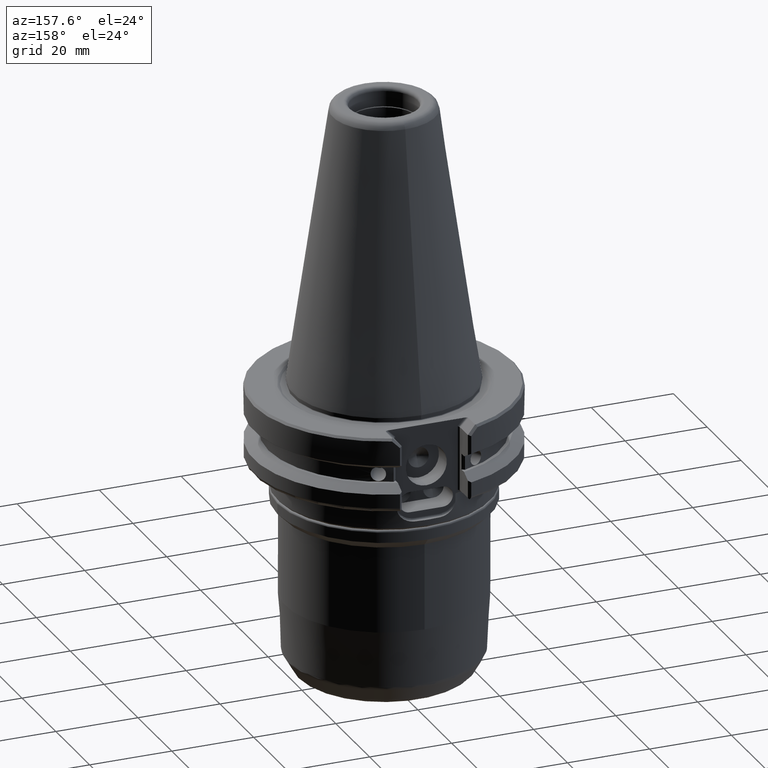
[diagram: clean part render]
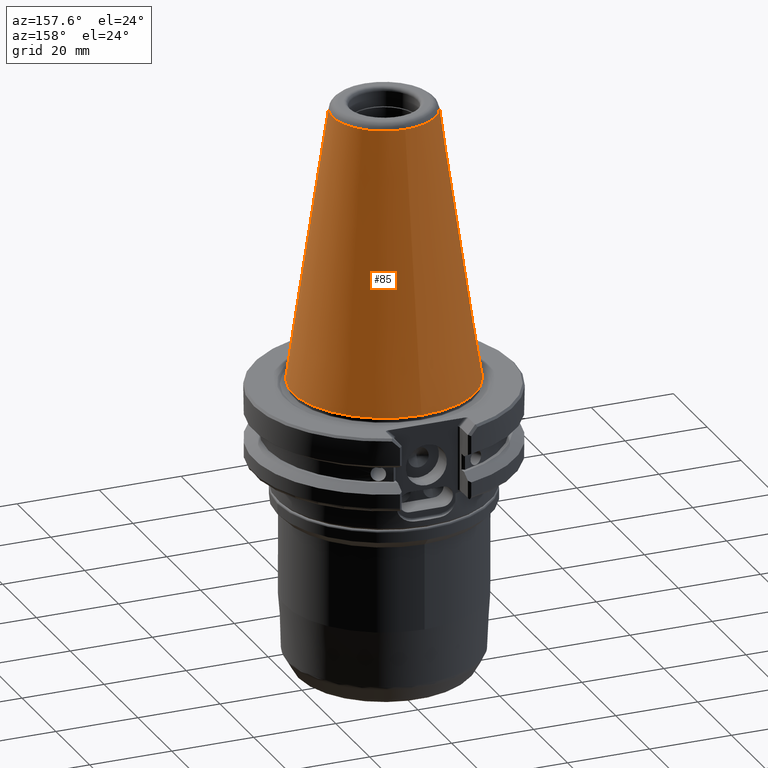
[diagram: same view with one face highlighted and labeled with its STEP entity id]
A machine part, auxiliary view. The second image highlights one B-rep face of the part: STEP entity #85.
In plain terms, the highlighted conical surface has half-angle 8.297 deg.
Its self-contained STEP definition (entity closure, byte-faithful):
#85 = ADVANCED_FACE ( 'NONE', ( #5278, #3450 ), #2540, .T. ) ;
#280 = DIRECTION ( 'NONE',  ( -3.491481338843133355E-15, 0.000000000000000000, -1.000000000000000000 ) ) ;
#455 = DIRECTION ( 'NONE',  ( -3.491481338843133355E-15, 0.000000000000000000, -1.000000000000000000 ) ) ;
#463 = EDGE_LOOP ( 'NONE', ( #4574 ) ) ;
#873 = DIRECTION ( 'NONE',  ( -1.224646799149985784E-16, 1.000000000000000000, 0.000000000000000000 ) ) ;
#1163 = CARTESIAN_POINT ( 'NONE',  ( 1.580162363792320573E-13, -2.622346784164620152E-12, 59.88475240748900319 ) ) ;
#1411 = DIRECTION ( 'NONE',  ( -0.2938119377117398012, -0.9558632461069275221, 7.663133605719113771E-14 ) ) ;
#1647 = AXIS2_PLACEMENT_3D ( 'NONE', #1861, #455, #873 ) ;
#1735 = VERTEX_POINT ( 'NONE', #3558 ) ;
#1861 = CARTESIAN_POINT ( 'NONE',  ( 2.323183283466586132E-13, 0.000000000000000000, 66.53861378610000088 ) ) ;
#2417 = AXIS2_PLACEMENT_3D ( 'NONE', #3945, #280, #5789 ) ;
#2540 = CONICAL_SURFACE ( 'NONE', #5910, 13.49180694057800700, 0.1448124982387949955 ) ;
#3219 = EDGE_CURVE ( 'NONE', #1735, #1735, #4514, .T. ) ;
#3314 = EDGE_CURVE ( 'NONE', #5773, #5773, #5476, .T. ) ;
#3450 = FACE_OUTER_BOUND ( 'NONE', #463, .T. ) ;
#3558 = CARTESIAN_POINT ( 'NONE',  ( 2.307848927162786387E-13, 12.52145215620000052, 66.53861378610000088 ) ) ;
#3945 = CARTESIAN_POINT ( 'NONE',  ( 1.211350928883961259E-29, 0.000000000000000000, 3.469446951949999628E-15 ) ) ;
#4199 = ORIENTED_EDGE ( 'NONE', *, *, #3219, .T. ) ;
#4514 = CIRCLE ( 'NONE', #1647, 12.52145215620000052 ) ;
#4574 = ORIENTED_EDGE ( 'NONE', *, *, #3314, .F. ) ;
#4898 = CARTESIAN_POINT ( 'NONE',  ( -2.721777511110863157E-15, 22.22500000000000142, 3.469446951950009094E-15 ) ) ;
#4911 = EDGE_LOOP ( 'NONE', ( #4199 ) ) ;
#5028 = DIRECTION ( 'NONE',  ( -6.355553174085823888E-14, -6.086507800492969883E-14, -1.000000000000000000 ) ) ;
#5278 = FACE_BOUND ( 'NONE', #4911, .T. ) ;
#5476 = CIRCLE ( 'NONE', #2417, 22.22500000000000142 ) ;
#5773 = VERTEX_POINT ( 'NONE', #4898 ) ;
#5789 = DIRECTION ( 'NONE',  ( -1.224646799149999836E-16, 1.000000000000000000, 4.332800774774433988E-31 ) ) ;
#5910 = AXIS2_PLACEMENT_3D ( 'NONE', #1163, #5028, #1411 ) ;